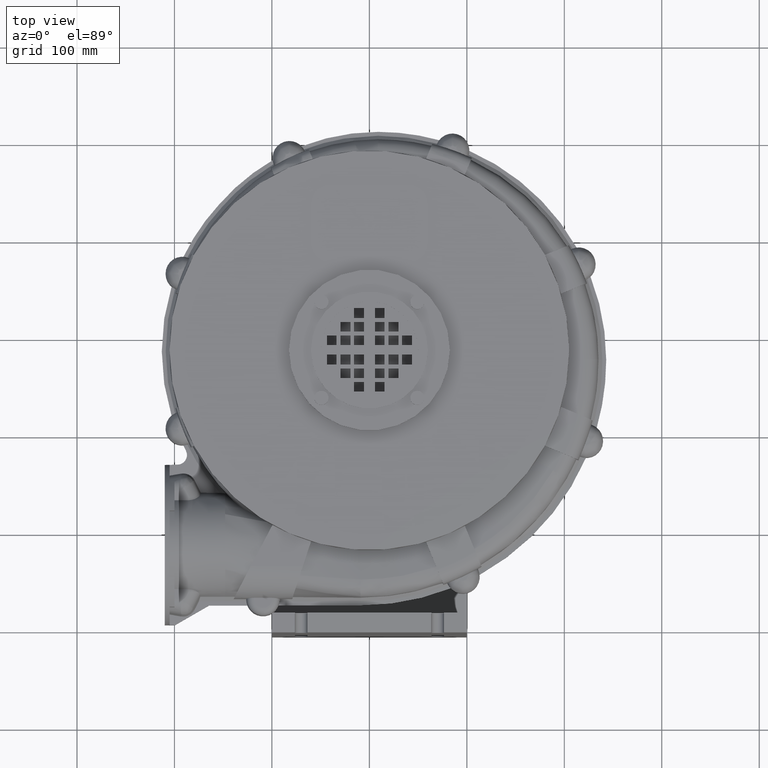
[diagram: clean part render]
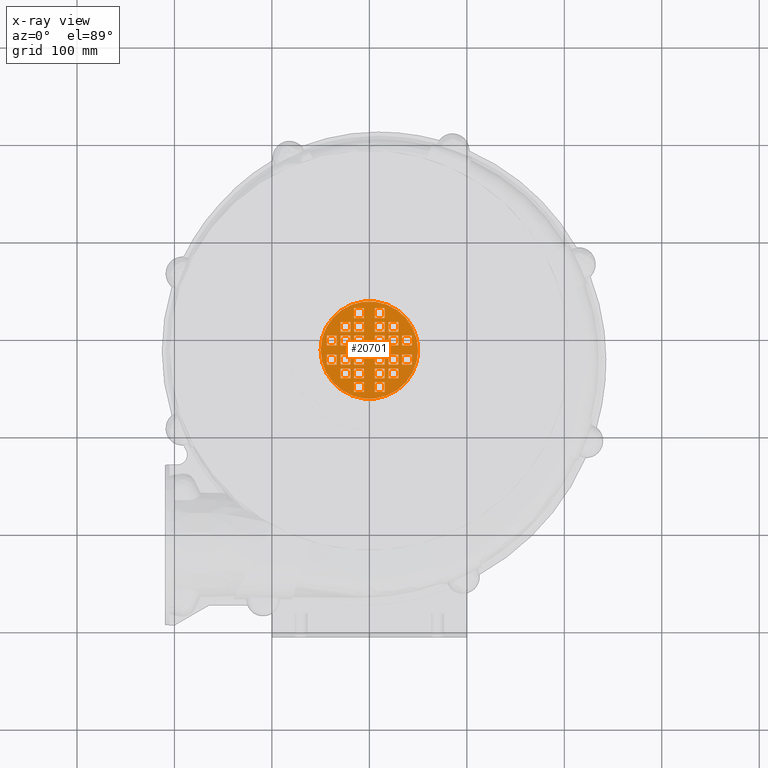
[diagram: x-ray — body ghosted, one internal face saturated and labeled with its STEP entity id]
A machine part, top view, then the same camera in x-ray: the body is ghosted and one INTERNAL B-rep face — a face not visible from any outside direction — is saturated and labeled: STEP entity #20701.
In plain terms, the highlighted planar face has unit normal (0, 0, -1).
Its self-contained STEP definition (entity closure, byte-faithful):
#17570=CARTESIAN_POINT('',(5.659082812206687,-47.889089927932162,148.4999999999996));
#17571=VERTEX_POINT('',#17570);
#17572=CARTESIAN_POINT('',(5.659082812206689,-57.889089927932162,148.4999999999996));
#17573=VERTEX_POINT('',#17572);
#17574=CARTESIAN_POINT('',(5.65908281220669,-47.889089927932147,148.4999999999996));
#17575=DIRECTION('',(0.0,-1.0,0.0));
#17576=VECTOR('',#17575,10.0);
#17577=LINE('',#17574,#17576);
#17578=EDGE_CURVE('',#17571,#17573,#17577,.T.);
#17610=CARTESIAN_POINT('',(15.659082812206687,-57.889089927932162,148.4999999999996));
#17611=VERTEX_POINT('',#17610);
#17612=CARTESIAN_POINT('',(5.659082812206689,-57.889089927932162,148.4999999999996));
#17613=DIRECTION('',(1.0,0.0,0.0));
#17614=VECTOR('',#17613,10.0);
#17615=LINE('',#17612,#17614);
#17616=EDGE_CURVE('',#17573,#17611,#17615,.T.);
#17641=CARTESIAN_POINT('',(15.659082812206687,-47.889089927932162,148.4999999999996));
#17642=VERTEX_POINT('',#17641);
#17643=CARTESIAN_POINT('',(15.659082812206689,-57.889089927932154,148.4999999999996));
#17644=DIRECTION('',(0.0,1.0,0.0));
#17645=VECTOR('',#17644,10.0);
#17646=LINE('',#17643,#17645);
#17647=EDGE_CURVE('',#17611,#17642,#17646,.T.);
#17672=CARTESIAN_POINT('',(15.659082812206687,-47.889089927932162,148.4999999999996));
#17673=DIRECTION('',(-1.0,0.0,0.0));
#17674=VECTOR('',#17673,10.0);
#17675=LINE('',#17672,#17674);
#17676=EDGE_CURVE('',#17642,#17571,#17675,.T.);
#17694=CARTESIAN_POINT('',(5.659082812206687,-33.889089927932147,148.4999999999996));
#17695=VERTEX_POINT('',#17694);
#17696=CARTESIAN_POINT('',(5.659082812206687,-43.889089927932147,148.4999999999996));
#17697=VERTEX_POINT('',#17696);
#17698=CARTESIAN_POINT('',(5.659082812206687,-33.88908992793214,148.4999999999996));
#17699=DIRECTION('',(0.0,-1.0,0.0));
#17700=VECTOR('',#17699,10.0);
#17701=LINE('',#17698,#17700);
#17702=EDGE_CURVE('',#17695,#17697,#17701,.T.);
#17734=CARTESIAN_POINT('',(15.659082812206687,-43.889089927932147,148.4999999999996));
#17735=VERTEX_POINT('',#17734);
#17736=CARTESIAN_POINT('',(5.659082812206687,-43.889089927932147,148.4999999999996));
#17737=DIRECTION('',(1.0,0.0,0.0));
#17738=VECTOR('',#17737,10.0);
#17739=LINE('',#17736,#17738);
#17740=EDGE_CURVE('',#17697,#17735,#17739,.T.);
#17765=CARTESIAN_POINT('',(15.659082812206687,-33.889089927932147,148.4999999999996));
#17766=VERTEX_POINT('',#17765);
#17767=CARTESIAN_POINT('',(15.659082812206687,-43.88908992793214,148.4999999999996));
#17768=DIRECTION('',(0.0,1.0,0.0));
#17769=VECTOR('',#17768,10.0);
#17770=LINE('',#17767,#17769);
#17771=EDGE_CURVE('',#17735,#17766,#17770,.T.);
#17796=CARTESIAN_POINT('',(15.659082812206687,-33.889089927932147,148.4999999999996));
#17797=DIRECTION('',(-1.0,0.0,0.0));
#17798=VECTOR('',#17797,10.0);
#17799=LINE('',#17796,#17798);
#17800=EDGE_CURVE('',#17766,#17695,#17799,.T.);
#17818=CARTESIAN_POINT('',(19.659082812206691,-19.889089927932147,148.49999999999957));
#17819=VERTEX_POINT('',#17818);
#17820=CARTESIAN_POINT('',(19.659082812206691,-29.88908992793214,148.4999999999996));
#17821=VERTEX_POINT('',#17820);
#17822=CARTESIAN_POINT('',(19.659082812206691,-19.889089927932147,148.49999999999957));
#17823=DIRECTION('',(0.0,-1.0,0.0));
#17824=VECTOR('',#17823,9.999999999999993);
#17825=LINE('',#17822,#17824);
#17826=EDGE_CURVE('',#17819,#17821,#17825,.T.);
#17858=CARTESIAN_POINT('',(29.659082812206684,-29.88908992793214,148.49999999999957));
#17859=VERTEX_POINT('',#17858);
#17860=CARTESIAN_POINT('',(19.659082812206691,-29.88908992793214,148.4999999999996));
#17861=DIRECTION('',(1.0,0.0,0.0));
#17862=VECTOR('',#17861,9.999999999999993);
#17863=LINE('',#17860,#17862);
#17864=EDGE_CURVE('',#17821,#17859,#17863,.T.);
#17889=CARTESIAN_POINT('',(29.659082812206684,-19.88908992793214,148.49999999999955));
#17890=VERTEX_POINT('',#17889);
#17891=CARTESIAN_POINT('',(29.659082812206684,-29.88908992793214,148.49999999999955));
#17892=DIRECTION('',(0.0,1.0,0.0));
#17893=VECTOR('',#17892,10.0);
#17894=LINE('',#17891,#17893);
#17895=EDGE_CURVE('',#17859,#17890,#17894,.T.);
#17920=CARTESIAN_POINT('',(29.659082812206684,-19.889089927932144,148.4999999999996));
#17921=DIRECTION('',(-1.0,0.0,0.0));
#17922=VECTOR('',#17921,9.999999999999993);
#17923=LINE('',#17920,#17922);
#17924=EDGE_CURVE('',#17890,#17819,#17923,.T.);
#17942=CARTESIAN_POINT('',(19.659082812206691,-33.889089927932147,148.4999999999996));
#17943=VERTEX_POINT('',#17942);
#17944=CARTESIAN_POINT('',(19.659082812206687,-43.889089927932147,148.4999999999996));
#17945=VERTEX_POINT('',#17944);
#17946=CARTESIAN_POINT('',(19.659082812206698,-33.889089927932147,148.49999999999957));
#17947=DIRECTION('',(0.0,-1.0,0.0));
#17948=VECTOR('',#17947,10.0);
#17949=LINE('',#17946,#17948);
#17950=EDGE_CURVE('',#17943,#17945,#17949,.T.);
#17982=CARTESIAN_POINT('',(29.659082812206684,-43.889089927932147,148.4999999999996));
#17983=VERTEX_POINT('',#17982);
#17984=CARTESIAN_POINT('',(19.659082812206687,-43.88908992793214,148.4999999999996));
#17985=DIRECTION('',(1.0,0.0,0.0));
#17986=VECTOR('',#17985,9.999999999999996);
#17987=LINE('',#17984,#17986);
#17988=EDGE_CURVE('',#17945,#17983,#17987,.T.);
#18013=CARTESIAN_POINT('',(29.659082812206684,-33.889089927932147,148.49999999999957));
#18014=VERTEX_POINT('',#18013);
#18015=CARTESIAN_POINT('',(29.659082812206684,-43.88908992793214,148.49999999999957));
#18016=DIRECTION('',(0.0,1.0,0.0));
#18017=VECTOR('',#18016,10.0);
#18018=LINE('',#18015,#18017);
#18019=EDGE_CURVE('',#17983,#18014,#18018,.T.);
#18044=CARTESIAN_POINT('',(29.659082812206684,-33.889089927932147,148.4999999999996));
#18045=DIRECTION('',(-1.0,0.0,0.0));
#18046=VECTOR('',#18045,9.999999999999993);
#18047=LINE('',#18044,#18046);
#18048=EDGE_CURVE('',#18014,#17943,#18047,.T.);
#18066=CARTESIAN_POINT('',(5.659082812206687,-19.88908992793214,148.4999999999996));
#18067=VERTEX_POINT('',#18066);
#18068=CARTESIAN_POINT('',(5.659082812206687,-29.88908992793214,148.4999999999996));
#18069=VERTEX_POINT('',#18068);
#18070=CARTESIAN_POINT('',(5.659082812206687,-19.88908992793214,148.4999999999996));
#18071=DIRECTION('',(0.0,-1.0,0.0));
#18072=VECTOR('',#18071,10.0);
#18073=LINE('',#18070,#18072);
#18074=EDGE_CURVE('',#18067,#18069,#18073,.T.);
#18106=CARTESIAN_POINT('',(15.659082812206687,-29.88908992793214,148.4999999999996));
#18107=VERTEX_POINT('',#18106);
#18108=CARTESIAN_POINT('',(5.659082812206687,-29.88908992793214,148.4999999999996));
#18109=DIRECTION('',(1.0,0.0,0.0));
#18110=VECTOR('',#18109,10.0);
#18111=LINE('',#18108,#18110);
#18112=EDGE_CURVE('',#18069,#18107,#18111,.T.);
#18137=CARTESIAN_POINT('',(15.659082812206687,-19.88908992793214,148.4999999999996));
#18138=VERTEX_POINT('',#18137);
#18139=CARTESIAN_POINT('',(15.659082812206687,-29.88908992793214,148.4999999999996));
#18140=DIRECTION('',(0.0,1.0,0.0));
#18141=VECTOR('',#18140,10.0);
#18142=LINE('',#18139,#18141);
#18143=EDGE_CURVE('',#18107,#18138,#18142,.T.);
#18168=CARTESIAN_POINT('',(15.659082812206687,-19.88908992793214,148.4999999999996));
#18169=DIRECTION('',(-1.0,0.0,0.0));
#18170=VECTOR('',#18169,10.0);
#18171=LINE('',#18168,#18170);
#18172=EDGE_CURVE('',#18138,#18067,#18171,.T.);
#18190=CARTESIAN_POINT('',(33.659082812206684,-19.88908992793214,148.49999999999955));
#18191=VERTEX_POINT('',#18190);
#18192=CARTESIAN_POINT('',(33.659082812206684,-29.88908992793214,148.49999999999955));
#18193=VERTEX_POINT('',#18192);
#18194=CARTESIAN_POINT('',(33.659082812206684,-19.88908992793214,148.49999999999955));
#18195=DIRECTION('',(0.0,-1.0,0.0));
#18196=VECTOR('',#18195,9.999999999999996);
#18197=LINE('',#18194,#18196);
#18198=EDGE_CURVE('',#18191,#18193,#18197,.T.);
#18230=CARTESIAN_POINT('',(43.659082812206691,-29.88908992793214,148.49999999999955));
#18231=VERTEX_POINT('',#18230);
#18232=CARTESIAN_POINT('',(33.659082812206691,-29.88908992793214,148.4999999999996));
#18233=DIRECTION('',(1.0,0.0,0.0));
#18234=VECTOR('',#18233,10.0);
#18235=LINE('',#18232,#18234);
#18236=EDGE_CURVE('',#18193,#18231,#18235,.T.);
#18261=CARTESIAN_POINT('',(43.659082812206691,-19.88908992793214,148.49999999999955));
#18262=VERTEX_POINT('',#18261);
#18263=CARTESIAN_POINT('',(43.659082812206691,-29.88908992793214,148.49999999999955));
#18264=DIRECTION('',(0.0,1.0,0.0));
#18265=VECTOR('',#18264,10.0);
#18266=LINE('',#18263,#18265);
#18267=EDGE_CURVE('',#18231,#18262,#18266,.T.);
#18292=CARTESIAN_POINT('',(43.659082812206691,-19.88908992793214,148.49999999999955));
#18293=DIRECTION('',(-1.0,0.0,0.0));
#18294=VECTOR('',#18293,10.0);
#18295=LINE('',#18292,#18294);
#18296=EDGE_CURVE('',#18262,#18191,#18295,.T.);
#18314=CARTESIAN_POINT('',(-5.659082812206579,-57.889089927932162,148.49999999999963));
#18315=VERTEX_POINT('',#18314);
#18316=CARTESIAN_POINT('',(-5.659082812206579,-47.889089927932162,148.4999999999996));
#18317=VERTEX_POINT('',#18316);
#18318=CARTESIAN_POINT('',(-5.659082812206579,-57.889089927932154,148.4999999999996));
#18319=DIRECTION('',(0.0,1.0,0.0));
#18320=VECTOR('',#18319,10.0);
#18321=LINE('',#18318,#18320);
#18322=EDGE_CURVE('',#18315,#18317,#18321,.T.);
#18354=CARTESIAN_POINT('',(-15.659082812206577,-47.889089927932162,148.49999999999963));
#18355=VERTEX_POINT('',#18354);
#18356=CARTESIAN_POINT('',(-5.659082812206579,-47.889089927932162,148.4999999999996));
#18357=DIRECTION('',(-1.0,0.0,0.0));
#18358=VECTOR('',#18357,9.999999999999998);
#18359=LINE('',#18356,#18358);
#18360=EDGE_CURVE('',#18317,#18355,#18359,.T.);
#18385=CARTESIAN_POINT('',(-15.659082812206577,-57.889089927932162,148.49999999999963));
#18386=VERTEX_POINT('',#18385);
#18387=CARTESIAN_POINT('',(-15.659082812206579,-47.889089927932154,148.4999999999996));
#18388=DIRECTION('',(0.0,-1.0,0.0));
#18389=VECTOR('',#18388,10.0);
#18390=LINE('',#18387,#18389);
#18391=EDGE_CURVE('',#18355,#18386,#18390,.T.);
#18416=CARTESIAN_POINT('',(-15.659082812206577,-57.889089927932162,148.4999999999996));
#18417=DIRECTION('',(1.0,0.0,0.0));
#18418=VECTOR('',#18417,9.999999999999996);
#18419=LINE('',#18416,#18418);
#18420=EDGE_CURVE('',#18386,#18315,#18419,.T.);
#18438=CARTESIAN_POINT('',(-5.659082812206581,-43.889089927932147,148.4999999999996));
#18439=VERTEX_POINT('',#18438);
#18440=CARTESIAN_POINT('',(-5.659082812206581,-33.889089927932147,148.4999999999996));
#18441=VERTEX_POINT('',#18440);
#18442=CARTESIAN_POINT('',(-5.65908281220658,-43.889089927932147,148.4999999999996));
#18443=DIRECTION('',(0.0,1.0,0.0));
#18444=VECTOR('',#18443,10.0);
#18445=LINE('',#18442,#18444);
#18446=EDGE_CURVE('',#18439,#18441,#18445,.T.);
#18478=CARTESIAN_POINT('',(-15.659082812206579,-33.889089927932147,148.4999999999996));
#18479=VERTEX_POINT('',#18478);
#18480=CARTESIAN_POINT('',(-5.65908281220658,-33.889089927932147,148.4999999999996));
#18481=DIRECTION('',(-1.0,0.0,0.0));
#18482=VECTOR('',#18481,10.0);
#18483=LINE('',#18480,#18482);
#18484=EDGE_CURVE('',#18441,#18479,#18483,.T.);
#18509=CARTESIAN_POINT('',(-15.659082812206577,-43.889089927932147,148.49999999999963));
#18510=VERTEX_POINT('',#18509);
#18511=CARTESIAN_POINT('',(-15.659082812206579,-33.88908992793214,148.4999999999996));
#18512=DIRECTION('',(0.0,-1.0,0.0));
#18513=VECTOR('',#18512,10.0);
#18514=LINE('',#18511,#18513);
#18515=EDGE_CURVE('',#18479,#18510,#18514,.T.);
#18540=CARTESIAN_POINT('',(-15.659082812206577,-43.889089927932147,148.4999999999996));
#18541=DIRECTION('',(1.0,0.0,0.0));
#18542=VECTOR('',#18541,9.999999999999996);
#18543=LINE('',#18540,#18542);
#18544=EDGE_CURVE('',#18510,#18439,#18543,.T.);
#18562=CARTESIAN_POINT('',(-19.659082812206581,-29.88908992793214,148.4999999999996));
#18563=VERTEX_POINT('',#18562);
#18564=CARTESIAN_POINT('',(-19.659082812206581,-19.889089927932147,148.4999999999996));
#18565=VERTEX_POINT('',#18564);
#18566=CARTESIAN_POINT('',(-19.659082812206581,-29.88908992793214,148.4999999999996));
#18567=DIRECTION('',(0.0,1.0,0.0));
#18568=VECTOR('',#18567,9.999999999999993);
#18569=LINE('',#18566,#18568);
#18570=EDGE_CURVE('',#18563,#18565,#18569,.T.);
#18602=CARTESIAN_POINT('',(-29.659082812206577,-19.889089927932147,148.49999999999963));
#18603=VERTEX_POINT('',#18602);
#18604=CARTESIAN_POINT('',(-19.659082812206581,-19.889089927932147,148.4999999999996));
#18605=DIRECTION('',(-1.0,0.0,0.0));
#18606=VECTOR('',#18605,9.999999999999996);
#18607=LINE('',#18604,#18606);
#18608=EDGE_CURVE('',#18565,#18603,#18607,.T.);
#18633=CARTESIAN_POINT('',(-29.659082812206577,-29.88908992793214,148.49999999999963));
#18634=VERTEX_POINT('',#18633);
#18635=CARTESIAN_POINT('',(-29.659082812206577,-19.889089927932147,148.49999999999963));
#18636=DIRECTION('',(0.0,-1.0,0.0));
#18637=VECTOR('',#18636,9.999999999999996);
#18638=LINE('',#18635,#18637);
#18639=EDGE_CURVE('',#18603,#18634,#18638,.T.);
#18664=CARTESIAN_POINT('',(-29.659082812206577,-29.88908992793214,148.49999999999963));
#18665=DIRECTION('',(1.0,0.0,0.0));
#18666=VECTOR('',#18665,9.999999999999996);
#18667=LINE('',#18664,#18666);
#18668=EDGE_CURVE('',#18634,#18563,#18667,.T.);
#18686=CARTESIAN_POINT('',(-19.659082812206581,-43.889089927932147,148.49999999999963));
#18687=VERTEX_POINT('',#18686);
#18688=CARTESIAN_POINT('',(-19.659082812206581,-33.889089927932147,148.49999999999963));
#18689=VERTEX_POINT('',#18688);
#18690=CARTESIAN_POINT('',(-19.659082812206581,-43.889089927932147,148.4999999999996));
#18691=DIRECTION('',(0.0,1.0,0.0));
#18692=VECTOR('',#18691,10.0);
#18693=LINE('',#18690,#18692);
#18694=EDGE_CURVE('',#18687,#18689,#18693,.T.);
#18726=CARTESIAN_POINT('',(-29.659082812206577,-33.889089927932147,148.49999999999963));
#18727=VERTEX_POINT('',#18726);
#18728=CARTESIAN_POINT('',(-19.659082812206581,-33.889089927932147,148.4999999999996));
#18729=DIRECTION('',(-1.0,0.0,0.0));
#18730=VECTOR('',#18729,9.999999999999996);
#18731=LINE('',#18728,#18730);
#18732=EDGE_CURVE('',#18689,#18727,#18731,.T.);
#18757=CARTESIAN_POINT('',(-29.659082812206577,-43.889089927932147,148.49999999999963));
#18758=VERTEX_POINT('',#18757);
#18759=CARTESIAN_POINT('',(-29.659082812206577,-33.889089927932147,148.49999999999963));
#18760=DIRECTION('',(0.0,-1.0,0.0));
#18761=VECTOR('',#18760,10.0);
#18762=LINE('',#18759,#18761);
#18763=EDGE_CURVE('',#18727,#18758,#18762,.T.);
#18788=CARTESIAN_POINT('',(-29.659082812206577,-43.88908992793214,148.49999999999963));
#18789=DIRECTION('',(1.0,0.0,0.0));
#18790=VECTOR('',#18789,10.0);
#18791=LINE('',#18788,#18790);
#18792=EDGE_CURVE('',#18758,#18687,#18791,.T.);
#18810=CARTESIAN_POINT('',(-5.659082812206582,-29.88908992793214,148.4999999999996));
#18811=VERTEX_POINT('',#18810);
#18812=CARTESIAN_POINT('',(-5.659082812206582,-19.88908992793214,148.4999999999996));
#18813=VERTEX_POINT('',#18812);
#18814=CARTESIAN_POINT('',(-5.65908281220658,-29.889089927932144,148.4999999999996));
#18815=DIRECTION('',(0.0,1.0,0.0));
#18816=VECTOR('',#18815,10.0);
#18817=LINE('',#18814,#18816);
#18818=EDGE_CURVE('',#18811,#18813,#18817,.T.);
#18850=CARTESIAN_POINT('',(-15.659082812206579,-19.88908992793214,148.4999999999996));
#18851=VERTEX_POINT('',#18850);
#18852=CARTESIAN_POINT('',(-5.659082812206581,-19.889089927932144,148.4999999999996));
#18853=DIRECTION('',(-1.0,0.0,0.0));
#18854=VECTOR('',#18853,10.0);
#18855=LINE('',#18852,#18854);
#18856=EDGE_CURVE('',#18813,#18851,#18855,.T.);
#18881=CARTESIAN_POINT('',(-15.659082812206579,-29.88908992793214,148.4999999999996));
#18882=VERTEX_POINT('',#18881);
#18883=CARTESIAN_POINT('',(-15.659082812206579,-19.889089927932144,148.4999999999996));
#18884=DIRECTION('',(0.0,-1.0,0.0));
#18885=VECTOR('',#18884,10.0);
#18886=LINE('',#18883,#18885);
#18887=EDGE_CURVE('',#18851,#18882,#18886,.T.);
#18912=CARTESIAN_POINT('',(-15.659082812206579,-29.88908992793214,148.4999999999996));
#18913=DIRECTION('',(1.0,0.0,0.0));
#18914=VECTOR('',#18913,9.999999999999998);
#18915=LINE('',#18912,#18914);
#18916=EDGE_CURVE('',#18882,#18811,#18915,.T.);
#18934=CARTESIAN_POINT('',(-33.659082812206577,-29.88908992793214,148.49999999999963));
#18935=VERTEX_POINT('',#18934);
#18936=CARTESIAN_POINT('',(-33.659082812206577,-19.889089927932147,148.49999999999963));
#18937=VERTEX_POINT('',#18936);
#18938=CARTESIAN_POINT('',(-33.659082812206577,-29.88908992793214,148.49999999999963));
#18939=DIRECTION('',(0.0,1.0,0.0));
#18940=VECTOR('',#18939,9.999999999999996);
#18941=LINE('',#18938,#18940);
#18942=EDGE_CURVE('',#18935,#18937,#18941,.T.);
#18974=CARTESIAN_POINT('',(-43.659082812206577,-19.889089927932144,148.49999999999963));
#18975=VERTEX_POINT('',#18974);
#18976=CARTESIAN_POINT('',(-33.659082812206577,-19.889089927932147,148.4999999999996));
#18977=DIRECTION('',(-1.0,0.0,0.0));
#18978=VECTOR('',#18977,10.0);
#18979=LINE('',#18976,#18978);
#18980=EDGE_CURVE('',#18937,#18975,#18979,.T.);
#19005=CARTESIAN_POINT('',(-43.659082812206577,-29.88908992793214,148.49999999999963));
#19006=VERTEX_POINT('',#19005);
#19007=CARTESIAN_POINT('',(-43.659082812206577,-19.889089927932144,148.49999999999963));
#19008=DIRECTION('',(0.0,-1.0,0.0));
#19009=VECTOR('',#19008,10.0);
#19010=LINE('',#19007,#19009);
#19011=EDGE_CURVE('',#18975,#19006,#19010,.T.);
#19036=CARTESIAN_POINT('',(-43.659082812206577,-29.88908992793214,148.49999999999963));
#19037=DIRECTION('',(1.0,0.0,0.0));
#19038=VECTOR('',#19037,10.0);
#19039=LINE('',#19036,#19038);
#19040=EDGE_CURVE('',#19006,#18935,#19039,.T.);
#19058=CARTESIAN_POINT('',(5.659082812206685,27.8890899279323,148.49999999999955));
#19059=VERTEX_POINT('',#19058);
#19060=CARTESIAN_POINT('',(5.659082812206685,17.8890899279323,148.49999999999955));
#19061=VERTEX_POINT('',#19060);
#19062=CARTESIAN_POINT('',(5.659082812206689,27.889089927932297,148.49999999999957));
#19063=DIRECTION('',(0.0,-1.0,0.0));
#19064=VECTOR('',#19063,10.0);
#19065=LINE('',#19062,#19064);
#19066=EDGE_CURVE('',#19059,#19061,#19065,.T.);
#19098=CARTESIAN_POINT('',(15.659082812206687,17.8890899279323,148.49999999999955));
#19099=VERTEX_POINT('',#19098);
#19100=CARTESIAN_POINT('',(5.659082812206685,17.8890899279323,148.49999999999955));
#19101=DIRECTION('',(1.0,0.0,0.0));
#19102=VECTOR('',#19101,10.0);
#19103=LINE('',#19100,#19102);
#19104=EDGE_CURVE('',#19061,#19099,#19103,.T.);
#19129=CARTESIAN_POINT('',(15.659082812206687,27.8890899279323,148.49999999999955));
#19130=VERTEX_POINT('',#19129);
#19131=CARTESIAN_POINT('',(15.659082812206687,17.889089927932297,148.49999999999955));
#19132=DIRECTION('',(0.0,1.0,0.0));
#19133=VECTOR('',#19132,10.0);
#19134=LINE('',#19131,#19133);
#19135=EDGE_CURVE('',#19099,#19130,#19134,.T.);
#19160=CARTESIAN_POINT('',(15.659082812206684,27.8890899279323,148.49999999999955));
#19161=DIRECTION('',(-1.0,0.0,0.0));
#19162=VECTOR('',#19161,10.0);
#19163=LINE('',#19160,#19162);
#19164=EDGE_CURVE('',#19130,#19059,#19163,.T.);
#19182=CARTESIAN_POINT('',(5.659082812206685,13.889089927932293,148.49999999999955));
#19183=VERTEX_POINT('',#19182);
#19184=CARTESIAN_POINT('',(5.659082812206685,3.889089927932292,148.49999999999957));
#19185=VERTEX_POINT('',#19184);
#19186=CARTESIAN_POINT('',(5.659082812206687,13.889089927932295,148.4999999999996));
#19187=DIRECTION('',(0.0,-1.0,0.0));
#19188=VECTOR('',#19187,10.0);
#19189=LINE('',#19186,#19188);
#19190=EDGE_CURVE('',#19183,#19185,#19189,.T.);
#19222=CARTESIAN_POINT('',(15.659082812206687,3.889089927932292,148.49999999999955));
#19223=VERTEX_POINT('',#19222);
#19224=CARTESIAN_POINT('',(5.659082812206686,3.889089927932297,148.49999999999957));
#19225=DIRECTION('',(1.0,0.0,0.0));
#19226=VECTOR('',#19225,10.0);
#19227=LINE('',#19224,#19226);
#19228=EDGE_CURVE('',#19185,#19223,#19227,.T.);
#19253=CARTESIAN_POINT('',(15.659082812206687,13.889089927932293,148.49999999999955));
#19254=VERTEX_POINT('',#19253);
#19255=CARTESIAN_POINT('',(15.659082812206687,3.889089927932292,148.49999999999955));
#19256=DIRECTION('',(0.0,1.0,0.0));
#19257=VECTOR('',#19256,10.0);
#19258=LINE('',#19255,#19257);
#19259=EDGE_CURVE('',#19223,#19254,#19258,.T.);
#19284=CARTESIAN_POINT('',(15.659082812206684,13.889089927932293,148.49999999999957));
#19285=DIRECTION('',(-1.0,0.0,0.0));
#19286=VECTOR('',#19285,10.0);
#19287=LINE('',#19284,#19286);
#19288=EDGE_CURVE('',#19254,#19183,#19287,.T.);
#19306=CARTESIAN_POINT('',(19.659082812206691,-0.110910072067711,148.49999999999955));
#19307=VERTEX_POINT('',#19306);
#19308=CARTESIAN_POINT('',(19.659082812206691,-10.110910072067703,148.49999999999957));
#19309=VERTEX_POINT('',#19308);
#19310=CARTESIAN_POINT('',(19.659082812206691,-0.110910072067707,148.49999999999957));
#19311=DIRECTION('',(0.0,-1.0,0.0));
#19312=VECTOR('',#19311,9.999999999999995);
#19313=LINE('',#19310,#19312);
#19314=EDGE_CURVE('',#19307,#19309,#19313,.T.);
#19346=CARTESIAN_POINT('',(29.659082812206684,-10.110910072067705,148.49999999999955));
#19347=VERTEX_POINT('',#19346);
#19348=CARTESIAN_POINT('',(19.659082812206691,-10.110910072067705,148.49999999999957));
#19349=DIRECTION('',(1.0,0.0,0.0));
#19350=VECTOR('',#19349,9.999999999999993);
#19351=LINE('',#19348,#19350);
#19352=EDGE_CURVE('',#19309,#19347,#19351,.T.);
#19377=CARTESIAN_POINT('',(29.659082812206684,-0.110910072067711,148.49999999999955));
#19378=VERTEX_POINT('',#19377);
#19379=CARTESIAN_POINT('',(29.659082812206684,-10.110910072067705,148.49999999999955));
#19380=DIRECTION('',(0.0,1.0,0.0));
#19381=VECTOR('',#19380,9.999999999999998);
#19382=LINE('',#19379,#19381);
#19383=EDGE_CURVE('',#19347,#19378,#19382,.T.);
#19408=CARTESIAN_POINT('',(29.659082812206684,-0.110910072067711,148.49999999999955));
#19409=DIRECTION('',(-1.0,0.0,0.0));
#19410=VECTOR('',#19409,9.999999999999993);
#19411=LINE('',#19408,#19410);
#19412=EDGE_CURVE('',#19378,#19307,#19411,.T.);
#19430=CARTESIAN_POINT('',(19.659082812206687,13.889089927932293,148.49999999999955));
#19431=VERTEX_POINT('',#19430);
#19432=CARTESIAN_POINT('',(19.659082812206691,3.889089927932292,148.49999999999955));
#19433=VERTEX_POINT('',#19432);
#19434=CARTESIAN_POINT('',(19.659082812206695,13.889089927932297,148.49999999999955));
#19435=DIRECTION('',(0.0,-1.0,0.0));
#19436=VECTOR('',#19435,10.0);
#19437=LINE('',#19434,#19436);
#19438=EDGE_CURVE('',#19431,#19433,#19437,.T.);
#19470=CARTESIAN_POINT('',(29.659082812206684,3.889089927932292,148.49999999999955));
#19471=VERTEX_POINT('',#19470);
#19472=CARTESIAN_POINT('',(19.659082812206691,3.889089927932292,148.49999999999955));
#19473=DIRECTION('',(1.0,0.0,0.0));
#19474=VECTOR('',#19473,9.999999999999993);
#19475=LINE('',#19472,#19474);
#19476=EDGE_CURVE('',#19433,#19471,#19475,.T.);
#19501=CARTESIAN_POINT('',(29.659082812206684,13.889089927932293,148.49999999999955));
#19502=VERTEX_POINT('',#19501);
#19503=CARTESIAN_POINT('',(29.659082812206684,3.889089927932292,148.49999999999955));
#19504=DIRECTION('',(0.0,1.0,0.0));
#19505=VECTOR('',#19504,10.0);
#19506=LINE('',#19503,#19505);
#19507=EDGE_CURVE('',#19471,#19502,#19506,.T.);
#19532=CARTESIAN_POINT('',(29.65908281220668,13.889089927932297,148.49999999999952));
#19533=DIRECTION('',(-1.0,0.0,0.0));
#19534=VECTOR('',#19533,9.999999999999996);
#19535=LINE('',#19532,#19534);
#19536=EDGE_CURVE('',#19502,#19431,#19535,.T.);
#19554=CARTESIAN_POINT('',(5.659082812206687,-0.110910072067711,148.49999999999957));
#19555=VERTEX_POINT('',#19554);
#19556=CARTESIAN_POINT('',(5.659082812206687,-10.110910072067709,148.4999999999996));
#19557=VERTEX_POINT('',#19556);
#19558=CARTESIAN_POINT('',(5.659082812206687,-0.110910072067711,148.4999999999996));
#19559=DIRECTION('',(0.0,-1.0,0.0));
#19560=VECTOR('',#19559,10.0);
#19561=LINE('',#19558,#19560);
#19562=EDGE_CURVE('',#19555,#19557,#19561,.T.);
#19594=CARTESIAN_POINT('',(15.659082812206687,-10.110910072067709,148.49999999999957));
#19595=VERTEX_POINT('',#19594);
#19596=CARTESIAN_POINT('',(5.659082812206687,-10.110910072067707,148.4999999999996));
#19597=DIRECTION('',(1.0,0.0,0.0));
#19598=VECTOR('',#19597,10.0);
#19599=LINE('',#19596,#19598);
#19600=EDGE_CURVE('',#19557,#19595,#19599,.T.);
#19625=CARTESIAN_POINT('',(15.659082812206687,-0.110910072067711,148.49999999999955));
#19626=VERTEX_POINT('',#19625);
#19627=CARTESIAN_POINT('',(15.659082812206687,-10.110910072067711,148.49999999999957));
#19628=DIRECTION('',(0.0,1.0,0.0));
#19629=VECTOR('',#19628,10.0);
#19630=LINE('',#19627,#19629);
#19631=EDGE_CURVE('',#19595,#19626,#19630,.T.);
#19656=CARTESIAN_POINT('',(15.659082812206687,-0.110910072067711,148.4999999999996));
#19657=DIRECTION('',(-1.0,0.0,0.0));
#19658=VECTOR('',#19657,10.0);
#19659=LINE('',#19656,#19658);
#19660=EDGE_CURVE('',#19626,#19555,#19659,.T.);
#19678=CARTESIAN_POINT('',(33.659082812206684,-0.110910072067711,148.49999999999955));
#19679=VERTEX_POINT('',#19678);
#19680=CARTESIAN_POINT('',(33.659082812206684,-10.110910072067705,148.49999999999955));
#19681=VERTEX_POINT('',#19680);
#19682=CARTESIAN_POINT('',(33.659082812206684,-0.110910072067707,148.49999999999955));
#19683=DIRECTION('',(0.0,-1.0,0.0));
#19684=VECTOR('',#19683,9.999999999999996);
#19685=LINE('',#19682,#19684);
#19686=EDGE_CURVE('',#19679,#19681,#19685,.T.);
#19718=CARTESIAN_POINT('',(43.659082812206691,-10.110910072067707,148.49999999999955));
#19719=VERTEX_POINT('',#19718);
#19720=CARTESIAN_POINT('',(33.659082812206691,-10.110910072067703,148.49999999999955));
#19721=DIRECTION('',(1.0,0.0,0.0));
#19722=VECTOR('',#19721,10.0);
#19723=LINE('',#19720,#19722);
#19724=EDGE_CURVE('',#19681,#19719,#19723,.T.);
#19749=CARTESIAN_POINT('',(43.659082812206691,-0.110910072067711,148.49999999999955));
#19750=VERTEX_POINT('',#19749);
#19751=CARTESIAN_POINT('',(43.659082812206691,-10.110910072067707,148.49999999999955));
#19752=DIRECTION('',(0.0,1.0,0.0));
#19753=VECTOR('',#19752,10.0);
#19754=LINE('',#19751,#19753);
#19755=EDGE_CURVE('',#19719,#19750,#19754,.T.);
#19780=CARTESIAN_POINT('',(43.659082812206691,-0.11091007206771,148.49999999999952));
#19781=DIRECTION('',(-1.0,0.0,0.0));
#19782=VECTOR('',#19781,10.0);
#19783=LINE('',#19780,#19782);
#19784=EDGE_CURVE('',#19750,#19679,#19783,.T.);
#19812=CARTESIAN_POINT('',(-5.659082812206584,27.8890899279323,148.49999999999957));
#19813=VERTEX_POINT('',#19812);
#19820=CARTESIAN_POINT('',(-5.659082812206582,17.8890899279323,148.49999999999957));
#19821=VERTEX_POINT('',#19820);
#19822=CARTESIAN_POINT('',(-5.659082812206582,17.889089927932297,148.4999999999996));
#19823=DIRECTION('',(0.0,1.0,0.0));
#19824=VECTOR('',#19823,10.0);
#19825=LINE('',#19822,#19824);
#19826=EDGE_CURVE('',#19821,#19813,#19825,.T.);
#19851=CARTESIAN_POINT('',(-15.659082812206581,17.8890899279323,148.4999999999996));
#19852=VERTEX_POINT('',#19851);
#19853=CARTESIAN_POINT('',(-15.659082812206581,17.8890899279323,148.49999999999957));
#19854=DIRECTION('',(1.0,0.0,0.0));
#19855=VECTOR('',#19854,10.0);
#19856=LINE('',#19853,#19855);
#19857=EDGE_CURVE('',#19852,#19821,#19856,.T.);
#19882=CARTESIAN_POINT('',(-15.659082812206581,27.8890899279323,148.4999999999996));
#19883=VERTEX_POINT('',#19882);
#19884=CARTESIAN_POINT('',(-15.659082812206583,27.889089927932297,148.4999999999996));
#19885=DIRECTION('',(0.0,-1.0,0.0));
#19886=VECTOR('',#19885,10.0);
#19887=LINE('',#19884,#19886);
#19888=EDGE_CURVE('',#19883,#19852,#19887,.T.);
#19911=CARTESIAN_POINT('',(-5.659082812206583,27.8890899279323,148.49999999999955));
#19912=DIRECTION('',(-1.0,0.0,0.0));
#19913=VECTOR('',#19912,9.999999999999998);
#19914=LINE('',#19911,#19913);
#19915=EDGE_CURVE('',#19813,#19883,#19914,.T.);
#19936=CARTESIAN_POINT('',(-5.659082812206583,13.889089927932293,148.4999999999996));
#19937=VERTEX_POINT('',#19936);
#19944=CARTESIAN_POINT('',(-5.659082812206582,3.889089927932292,148.4999999999996));
#19945=VERTEX_POINT('',#19944);
#19946=CARTESIAN_POINT('',(-5.659082812206582,3.889089927932295,148.4999999999996));
#19947=DIRECTION('',(0.0,1.0,0.0));
#19948=VECTOR('',#19947,10.0);
#19949=LINE('',#19946,#19948);
#19950=EDGE_CURVE('',#19945,#19937,#19949,.T.);
#19975=CARTESIAN_POINT('',(-15.659082812206581,3.889089927932292,148.4999999999996));
#19976=VERTEX_POINT('',#19975);
#19977=CARTESIAN_POINT('',(-15.659082812206581,3.889089927932294,148.4999999999996));
#19978=DIRECTION('',(1.0,0.0,0.0));
#19979=VECTOR('',#19978,10.0);
#19980=LINE('',#19977,#19979);
#19981=EDGE_CURVE('',#19976,#19945,#19980,.T.);
#20006=CARTESIAN_POINT('',(-15.659082812206581,13.889089927932293,148.4999999999996));
#20007=VERTEX_POINT('',#20006);
#20008=CARTESIAN_POINT('',(-15.659082812206581,13.889089927932293,148.4999999999996));
#20009=DIRECTION('',(0.0,-1.0,0.0));
#20010=VECTOR('',#20009,10.0);
#20011=LINE('',#20008,#20010);
#20012=EDGE_CURVE('',#20007,#19976,#20011,.T.);
#20035=CARTESIAN_POINT('',(-5.659082812206582,13.889089927932293,148.49999999999957));
#20036=DIRECTION('',(-1.0,0.0,0.0));
#20037=VECTOR('',#20036,10.0);
#20038=LINE('',#20035,#20037);
#20039=EDGE_CURVE('',#19937,#20007,#20038,.T.);
#20060=CARTESIAN_POINT('',(-19.659082812206581,-0.110910072067711,148.4999999999996));
#20061=VERTEX_POINT('',#20060);
#20068=CARTESIAN_POINT('',(-19.659082812206581,-10.110910072067705,148.4999999999996));
#20069=VERTEX_POINT('',#20068);
#20070=CARTESIAN_POINT('',(-19.659082812206581,-10.110910072067705,148.4999999999996));
#20071=DIRECTION('',(0.0,1.0,0.0));
#20072=VECTOR('',#20071,9.999999999999995);
#20073=LINE('',#20070,#20072);
#20074=EDGE_CURVE('',#20069,#20061,#20073,.T.);
#20099=CARTESIAN_POINT('',(-29.659082812206577,-10.110910072067707,148.4999999999996));
#20100=VERTEX_POINT('',#20099);
#20101=CARTESIAN_POINT('',(-29.659082812206577,-10.110910072067707,148.4999999999996));
#20102=DIRECTION('',(1.0,0.0,0.0));
#20103=VECTOR('',#20102,9.999999999999993);
#20104=LINE('',#20101,#20103);
#20105=EDGE_CURVE('',#20100,#20069,#20104,.T.);
#20130=CARTESIAN_POINT('',(-29.659082812206577,-0.110910072067711,148.4999999999996));
#20131=VERTEX_POINT('',#20130);
#20132=CARTESIAN_POINT('',(-29.659082812206577,-0.11091007206771,148.4999999999996));
#20133=DIRECTION('',(0.0,-1.0,0.0));
#20134=VECTOR('',#20133,9.999999999999996);
#20135=LINE('',#20132,#20134);
#20136=EDGE_CURVE('',#20131,#20100,#20135,.T.);
#20159=CARTESIAN_POINT('',(-19.659082812206584,-0.110910072067712,148.4999999999996));
#20160=DIRECTION('',(-1.0,0.0,0.0));
#20161=VECTOR('',#20160,9.999999999999993);
#20162=LINE('',#20159,#20161);
#20163=EDGE_CURVE('',#20061,#20131,#20162,.T.);
#20184=CARTESIAN_POINT('',(-19.659082812206581,13.889089927932293,148.4999999999996));
#20185=VERTEX_POINT('',#20184);
#20192=CARTESIAN_POINT('',(-19.659082812206584,3.889089927932292,148.4999999999996));
#20193=VERTEX_POINT('',#20192);
#20194=CARTESIAN_POINT('',(-19.659082812206584,3.889089927932294,148.4999999999996));
#20195=DIRECTION('',(0.0,1.0,0.0));
#20196=VECTOR('',#20195,10.0);
#20197=LINE('',#20194,#20196);
#20198=EDGE_CURVE('',#20193,#20185,#20197,.T.);
#20223=CARTESIAN_POINT('',(-29.659082812206577,3.889089927932292,148.4999999999996));
#20224=VERTEX_POINT('',#20223);
#20225=CARTESIAN_POINT('',(-29.659082812206577,3.889089927932292,148.4999999999996));
#20226=DIRECTION('',(1.0,0.0,0.0));
#20227=VECTOR('',#20226,9.999999999999993);
#20228=LINE('',#20225,#20227);
#20229=EDGE_CURVE('',#20224,#20193,#20228,.T.);
#20254=CARTESIAN_POINT('',(-29.659082812206577,13.889089927932293,148.4999999999996));
#20255=VERTEX_POINT('',#20254);
#20256=CARTESIAN_POINT('',(-29.659082812206577,13.889089927932293,148.4999999999996));
#20257=DIRECTION('',(0.0,-1.0,0.0));
#20258=VECTOR('',#20257,10.0);
#20259=LINE('',#20256,#20258);
#20260=EDGE_CURVE('',#20255,#20224,#20259,.T.);
#20283=CARTESIAN_POINT('',(-19.659082812206581,13.889089927932291,148.4999999999996));
#20284=DIRECTION('',(-1.0,0.0,0.0));
#20285=VECTOR('',#20284,9.999999999999996);
#20286=LINE('',#20283,#20285);
#20287=EDGE_CURVE('',#20185,#20255,#20286,.T.);
#20308=CARTESIAN_POINT('',(-5.659082812206582,-0.110910072067711,148.4999999999996));
#20309=VERTEX_POINT('',#20308);
#20316=CARTESIAN_POINT('',(-5.659082812206582,-10.110910072067709,148.4999999999996));
#20317=VERTEX_POINT('',#20316);
#20318=CARTESIAN_POINT('',(-5.659082812206582,-10.110910072067711,148.4999999999996));
#20319=DIRECTION('',(0.0,1.0,0.0));
#20320=VECTOR('',#20319,10.0);
#20321=LINE('',#20318,#20320);
#20322=EDGE_CURVE('',#20317,#20309,#20321,.T.);
#20347=CARTESIAN_POINT('',(-15.659082812206581,-10.110910072067709,148.4999999999996));
#20348=VERTEX_POINT('',#20347);
#20349=CARTESIAN_POINT('',(-15.659082812206581,-10.110910072067709,148.4999999999996));
#20350=DIRECTION('',(1.0,0.0,0.0));
#20351=VECTOR('',#20350,10.0);
#20352=LINE('',#20349,#20351);
#20353=EDGE_CURVE('',#20348,#20317,#20352,.T.);
#20378=CARTESIAN_POINT('',(-15.659082812206581,-0.110910072067711,148.4999999999996));
#20379=VERTEX_POINT('',#20378);
#20380=CARTESIAN_POINT('',(-15.659082812206581,-0.11091007206771,148.4999999999996));
#20381=DIRECTION('',(0.0,-1.0,0.0));
#20382=VECTOR('',#20381,10.0);
#20383=LINE('',#20380,#20382);
#20384=EDGE_CURVE('',#20379,#20348,#20383,.T.);
#20407=CARTESIAN_POINT('',(-5.659082812206582,-0.110910072067712,148.4999999999996));
#20408=DIRECTION('',(-1.0,0.0,0.0));
#20409=VECTOR('',#20408,10.0);
#20410=LINE('',#20407,#20409);
#20411=EDGE_CURVE('',#20309,#20379,#20410,.T.);
#20432=CARTESIAN_POINT('',(-33.659082812206577,-0.110910072067711,148.4999999999996));
#20433=VERTEX_POINT('',#20432);
#20440=CARTESIAN_POINT('',(-33.659082812206577,-10.110910072067707,148.4999999999996));
#20441=VERTEX_POINT('',#20440);
#20442=CARTESIAN_POINT('',(-33.659082812206577,-10.110910072067707,148.49999999999963));
#20443=DIRECTION('',(0.0,1.0,0.0));
#20444=VECTOR('',#20443,9.999999999999996);
#20445=LINE('',#20442,#20444);
#20446=EDGE_CURVE('',#20441,#20433,#20445,.T.);
#20471=CARTESIAN_POINT('',(-43.659082812206577,-10.110910072067711,148.49999999999963));
#20472=VERTEX_POINT('',#20471);
#20473=CARTESIAN_POINT('',(-43.659082812206577,-10.110910072067709,148.49999999999963));
#20474=DIRECTION('',(1.0,0.0,0.0));
#20475=VECTOR('',#20474,10.0);
#20476=LINE('',#20473,#20475);
#20477=EDGE_CURVE('',#20472,#20441,#20476,.T.);
#20502=CARTESIAN_POINT('',(-43.659082812206577,-0.110910072067711,148.49999999999963));
#20503=VERTEX_POINT('',#20502);
#20504=CARTESIAN_POINT('',(-43.659082812206577,-0.110910072067711,148.49999999999963));
#20505=DIRECTION('',(0.0,-1.0,0.0));
#20506=VECTOR('',#20505,10.0);
#20507=LINE('',#20504,#20506);
#20508=EDGE_CURVE('',#20503,#20472,#20507,.T.);
#20531=CARTESIAN_POINT('',(-33.659082812206577,-0.110910072067712,148.4999999999996));
#20532=DIRECTION('',(-1.0,0.0,0.0));
#20533=VECTOR('',#20532,10.0);
#20534=LINE('',#20531,#20533);
#20535=EDGE_CURVE('',#20433,#20503,#20534,.T.);
#20541=CARTESIAN_POINT('',(5.551115E-014,-14.999999999999925,148.4999999999996));
#20542=DIRECTION('',(0.0,0.0,-1.0));
#20543=DIRECTION('',(-1.0,0.0,0.0));
#20544=AXIS2_PLACEMENT_3D('',#20541,#20542,#20543);
#20545=PLANE('',#20544);
#20546=CARTESIAN_POINT('',(50.000000000000064,-14.999999999999915,148.49999999999955));
#20547=VERTEX_POINT('',#20546);
#20548=CARTESIAN_POINT('',(5.551115E-014,-14.999999999999925,148.4999999999996));
#20549=DIRECTION('',(0.0,0.0,1.0));
#20550=DIRECTION('',(-1.0,0.0,0.0));
#20551=AXIS2_PLACEMENT_3D('',#20548,#20549,#20550);
#20552=CIRCLE('',#20551,50.0);
#20553=EDGE_CURVE('',#20547,#20547,#20552,.T.);
#20554=ORIENTED_EDGE('',*,*,#20553,.F.);
#20555=EDGE_LOOP('',(#20554));
#20556=FACE_OUTER_BOUND('',#20555,.T.);
#20557=ORIENTED_EDGE('',*,*,#17647,.T.);
#20558=ORIENTED_EDGE('',*,*,#17676,.T.);
#20559=ORIENTED_EDGE('',*,*,#17578,.T.);
#20560=ORIENTED_EDGE('',*,*,#17616,.T.);
#20561=EDGE_LOOP('',(#20557,#20558,#20559,#20560));
#20562=FACE_BOUND('',#20561,.T.);
#20563=ORIENTED_EDGE('',*,*,#17771,.T.);
#20564=ORIENTED_EDGE('',*,*,#17800,.T.);
#20565=ORIENTED_EDGE('',*,*,#17702,.T.);
#20566=ORIENTED_EDGE('',*,*,#17740,.T.);
#20567=EDGE_LOOP('',(#20563,#20564,#20565,#20566));
#20568=FACE_BOUND('',#20567,.T.);
#20569=ORIENTED_EDGE('',*,*,#17895,.T.);
#20570=ORIENTED_EDGE('',*,*,#17924,.T.);
#20571=ORIENTED_EDGE('',*,*,#17826,.T.);
#20572=ORIENTED_EDGE('',*,*,#17864,.T.);
#20573=EDGE_LOOP('',(#20569,#20570,#20571,#20572));
#20574=FACE_BOUND('',#20573,.T.);
#20575=ORIENTED_EDGE('',*,*,#18019,.T.);
#20576=ORIENTED_EDGE('',*,*,#18048,.T.);
#20577=ORIENTED_EDGE('',*,*,#17950,.T.);
#20578=ORIENTED_EDGE('',*,*,#17988,.T.);
#20579=EDGE_LOOP('',(#20575,#20576,#20577,#20578));
#20580=FACE_BOUND('',#20579,.T.);
#20581=ORIENTED_EDGE('',*,*,#18143,.T.);
#20582=ORIENTED_EDGE('',*,*,#18172,.T.);
#20583=ORIENTED_EDGE('',*,*,#18074,.T.);
#20584=ORIENTED_EDGE('',*,*,#18112,.T.);
#20585=EDGE_LOOP('',(#20581,#20582,#20583,#20584));
#20586=FACE_BOUND('',#20585,.T.);
#20587=ORIENTED_EDGE('',*,*,#18267,.T.);
#20588=ORIENTED_EDGE('',*,*,#18296,.T.);
#20589=ORIENTED_EDGE('',*,*,#18198,.T.);
#20590=ORIENTED_EDGE('',*,*,#18236,.T.);
#20591=EDGE_LOOP('',(#20587,#20588,#20589,#20590));
#20592=FACE_BOUND('',#20591,.T.);
#20593=ORIENTED_EDGE('',*,*,#18391,.T.);
#20594=ORIENTED_EDGE('',*,*,#18420,.T.);
#20595=ORIENTED_EDGE('',*,*,#18322,.T.);
#20596=ORIENTED_EDGE('',*,*,#18360,.T.);
#20597=EDGE_LOOP('',(#20593,#20594,#20595,#20596));
#20598=FACE_BOUND('',#20597,.T.);
#20599=ORIENTED_EDGE('',*,*,#18515,.T.);
#20600=ORIENTED_EDGE('',*,*,#18544,.T.);
#20601=ORIENTED_EDGE('',*,*,#18446,.T.);
#20602=ORIENTED_EDGE('',*,*,#18484,.T.);
#20603=EDGE_LOOP('',(#20599,#20600,#20601,#20602));
#20604=FACE_BOUND('',#20603,.T.);
#20605=ORIENTED_EDGE('',*,*,#18639,.T.);
#20606=ORIENTED_EDGE('',*,*,#18668,.T.);
#20607=ORIENTED_EDGE('',*,*,#18570,.T.);
#20608=ORIENTED_EDGE('',*,*,#18608,.T.);
#20609=EDGE_LOOP('',(#20605,#20606,#20607,#20608));
#20610=FACE_BOUND('',#20609,.T.);
#20611=ORIENTED_EDGE('',*,*,#18763,.T.);
#20612=ORIENTED_EDGE('',*,*,#18792,.T.);
#20613=ORIENTED_EDGE('',*,*,#18694,.T.);
#20614=ORIENTED_EDGE('',*,*,#18732,.T.);
#20615=EDGE_LOOP('',(#20611,#20612,#20613,#20614));
#20616=FACE_BOUND('',#20615,.T.);
#20617=ORIENTED_EDGE('',*,*,#18887,.T.);
#20618=ORIENTED_EDGE('',*,*,#18916,.T.);
#20619=ORIENTED_EDGE('',*,*,#18818,.T.);
#20620=ORIENTED_EDGE('',*,*,#18856,.T.);
#20621=EDGE_LOOP('',(#20617,#20618,#20619,#20620));
#20622=FACE_BOUND('',#20621,.T.);
#20623=ORIENTED_EDGE('',*,*,#19011,.T.);
#20624=ORIENTED_EDGE('',*,*,#19040,.T.);
#20625=ORIENTED_EDGE('',*,*,#18942,.T.);
#20626=ORIENTED_EDGE('',*,*,#18980,.T.);
#20627=EDGE_LOOP('',(#20623,#20624,#20625,#20626));
#20628=FACE_BOUND('',#20627,.T.);
#20629=ORIENTED_EDGE('',*,*,#19135,.T.);
#20630=ORIENTED_EDGE('',*,*,#19164,.T.);
#20631=ORIENTED_EDGE('',*,*,#19066,.T.);
#20632=ORIENTED_EDGE('',*,*,#19104,.T.);
#20633=EDGE_LOOP('',(#20629,#20630,#20631,#20632));
#20634=FACE_BOUND('',#20633,.T.);
#20635=ORIENTED_EDGE('',*,*,#19259,.T.);
#20636=ORIENTED_EDGE('',*,*,#19288,.T.);
#20637=ORIENTED_EDGE('',*,*,#19190,.T.);
#20638=ORIENTED_EDGE('',*,*,#19228,.T.);
#20639=EDGE_LOOP('',(#20635,#20636,#20637,#20638));
#20640=FACE_BOUND('',#20639,.T.);
#20641=ORIENTED_EDGE('',*,*,#19383,.T.);
#20642=ORIENTED_EDGE('',*,*,#19412,.T.);
#20643=ORIENTED_EDGE('',*,*,#19314,.T.);
#20644=ORIENTED_EDGE('',*,*,#19352,.T.);
#20645=EDGE_LOOP('',(#20641,#20642,#20643,#20644));
#20646=FACE_BOUND('',#20645,.T.);
#20647=ORIENTED_EDGE('',*,*,#19507,.T.);
#20648=ORIENTED_EDGE('',*,*,#19536,.T.);
#20649=ORIENTED_EDGE('',*,*,#19438,.T.);
#20650=ORIENTED_EDGE('',*,*,#19476,.T.);
#20651=EDGE_LOOP('',(#20647,#20648,#20649,#20650));
#20652=FACE_BOUND('',#20651,.T.);
#20653=ORIENTED_EDGE('',*,*,#19631,.T.);
#20654=ORIENTED_EDGE('',*,*,#19660,.T.);
#20655=ORIENTED_EDGE('',*,*,#19562,.T.);
#20656=ORIENTED_EDGE('',*,*,#19600,.T.);
#20657=EDGE_LOOP('',(#20653,#20654,#20655,#20656));
#20658=FACE_BOUND('',#20657,.T.);
#20659=ORIENTED_EDGE('',*,*,#19755,.T.);
#20660=ORIENTED_EDGE('',*,*,#19784,.T.);
#20661=ORIENTED_EDGE('',*,*,#19686,.T.);
#20662=ORIENTED_EDGE('',*,*,#19724,.T.);
#20663=EDGE_LOOP('',(#20659,#20660,#20661,#20662));
#20664=FACE_BOUND('',#20663,.T.);
#20665=ORIENTED_EDGE('',*,*,#19888,.T.);
#20666=ORIENTED_EDGE('',*,*,#19857,.T.);
#20667=ORIENTED_EDGE('',*,*,#19826,.T.);
#20668=ORIENTED_EDGE('',*,*,#19915,.T.);
#20669=EDGE_LOOP('',(#20665,#20666,#20667,#20668));
#20670=FACE_BOUND('',#20669,.T.);
#20671=ORIENTED_EDGE('',*,*,#20012,.T.);
#20672=ORIENTED_EDGE('',*,*,#19981,.T.);
#20673=ORIENTED_EDGE('',*,*,#19950,.T.);
#20674=ORIENTED_EDGE('',*,*,#20039,.T.);
#20675=EDGE_LOOP('',(#20671,#20672,#20673,#20674));
#20676=FACE_BOUND('',#20675,.T.);
#20677=ORIENTED_EDGE('',*,*,#20136,.T.);
#20678=ORIENTED_EDGE('',*,*,#20105,.T.);
#20679=ORIENTED_EDGE('',*,*,#20074,.T.);
#20680=ORIENTED_EDGE('',*,*,#20163,.T.);
#20681=EDGE_LOOP('',(#20677,#20678,#20679,#20680));
#20682=FACE_BOUND('',#20681,.T.);
#20683=ORIENTED_EDGE('',*,*,#20260,.T.);
#20684=ORIENTED_EDGE('',*,*,#20229,.T.);
#20685=ORIENTED_EDGE('',*,*,#20198,.T.);
#20686=ORIENTED_EDGE('',*,*,#20287,.T.);
#20687=EDGE_LOOP('',(#20683,#20684,#20685,#20686));
#20688=FACE_BOUND('',#20687,.T.);
#20689=ORIENTED_EDGE('',*,*,#20384,.T.);
#20690=ORIENTED_EDGE('',*,*,#20353,.T.);
#20691=ORIENTED_EDGE('',*,*,#20322,.T.);
#20692=ORIENTED_EDGE('',*,*,#20411,.T.);
#20693=EDGE_LOOP('',(#20689,#20690,#20691,#20692));
#20694=FACE_BOUND('',#20693,.T.);
#20695=ORIENTED_EDGE('',*,*,#20508,.T.);
#20696=ORIENTED_EDGE('',*,*,#20477,.T.);
#20697=ORIENTED_EDGE('',*,*,#20446,.T.);
#20698=ORIENTED_EDGE('',*,*,#20535,.T.);
#20699=EDGE_LOOP('',(#20695,#20696,#20697,#20698));
#20700=FACE_BOUND('',#20699,.T.);
#20701=ADVANCED_FACE('',(#20556,#20562,#20568,#20574,#20580,#20586,#20592,#20598,#20604,#20610,#20616,#20622,#20628,#20634,#20640,#20646,#20652,#20658,#20664,#20670,#20676,#20682,#20688,#20694,#20700),#20545,.T.);